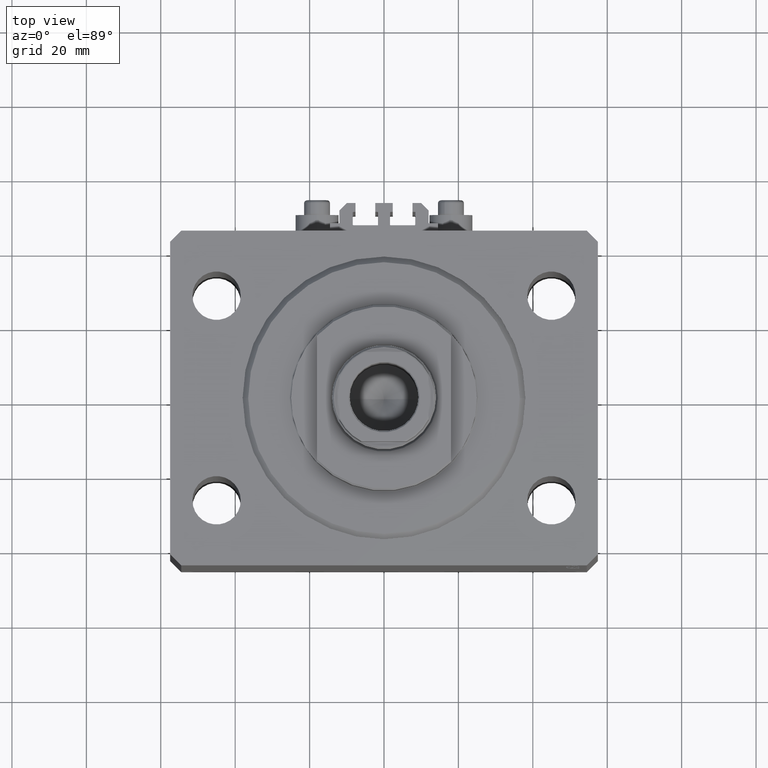
[diagram: clean part render]
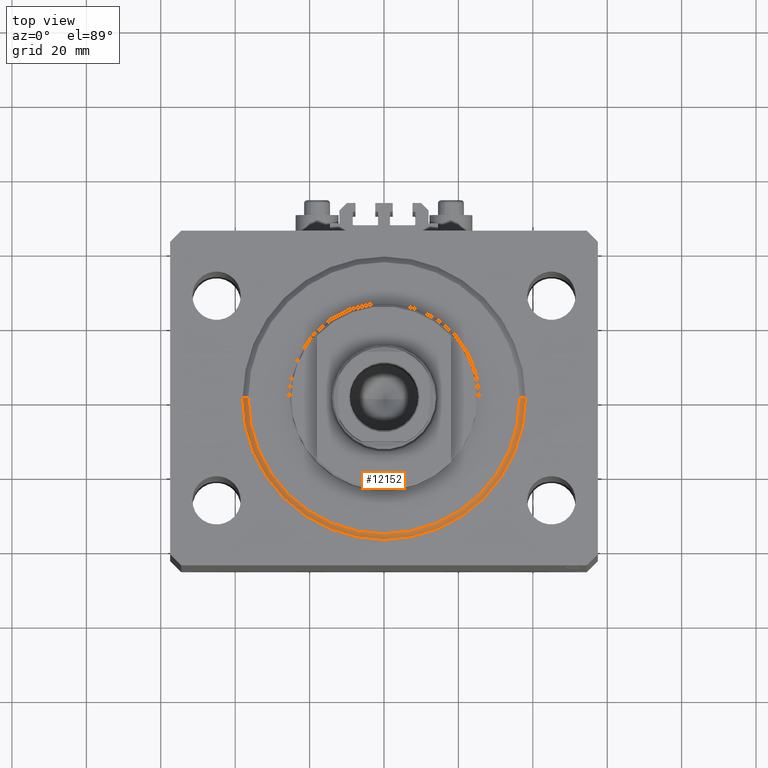
[diagram: same view with one face highlighted and labeled with its STEP entity id]
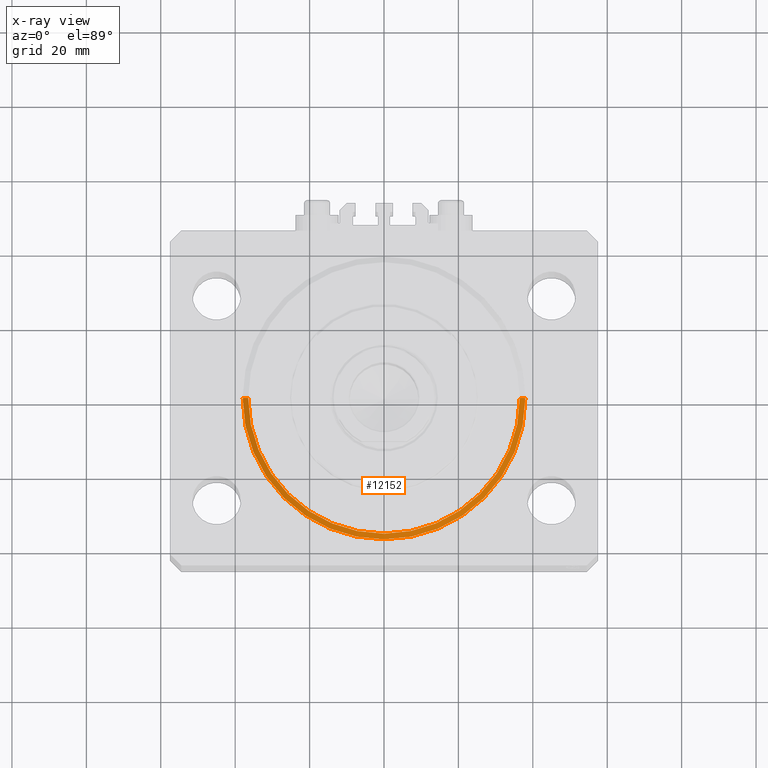
[diagram: x-ray of the same camera — body ghosted, the highlighted face saturated]
A machine part, top view. The second image highlights one B-rep face of the part: STEP entity #12152.
The next image is the same camera in x-ray: the body ghosted, the highlighted face saturated — about 0% of this face is hidden behind the body in this view.
In plain terms, the highlighted conical surface has half-angle 45 deg.
Its self-contained STEP definition (entity closure, byte-faithful):
#1091 = CARTESIAN_POINT ( 'NONE',  ( 0.000000000000000000, 0.000000000000000000, 0.000000000000000000 ) ) ;
#1856 = CARTESIAN_POINT ( 'NONE',  ( -36.50000000000000000, 4.561809326823889791E-15, 0.000000000000000000 ) ) ;
#3120 = VERTEX_POINT ( 'NONE', #44545 ) ;
#3258 = ORIENTED_EDGE ( 'NONE', *, *, #10671, .F. ) ;
#4612 = FACE_OUTER_BOUND ( 'NONE', #21319, .T. ) ;
#4870 = AXIS2_PLACEMENT_3D ( 'NONE', #1091, #30045, #22635 ) ;
#4907 = EDGE_CURVE ( 'NONE', #6651, #3120, #33453, .T. ) ;
#6651 = VERTEX_POINT ( 'NONE', #29297 ) ;
#8449 = DIRECTION ( 'NONE',  ( -0.000000000000000000, -0.000000000000000000, 1.000000000000000000 ) ) ;
#10671 = EDGE_CURVE ( 'NONE', #30992, #14857, #36977, .T. ) ;
#11618 = VECTOR ( 'NONE', #34641, 1000.000000000000114 ) ;
#12152 = ADVANCED_FACE ( 'NONE', ( #4612 ), #13872, .T. ) ;
#13872 = CONICAL_SURFACE ( 'NONE', #32204, 38.00000000000000000, 0.7853981633974506105 ) ;
#14857 = VERTEX_POINT ( 'NONE', #1856 ) ;
#16604 = EDGE_CURVE ( 'NONE', #14857, #6651, #19567, .T. ) ;
#16657 = AXIS2_PLACEMENT_3D ( 'NONE', #41797, #16906, #31968 ) ;
#16906 = DIRECTION ( 'NONE',  ( -0.000000000000000000, -0.000000000000000000, 1.000000000000000000 ) ) ;
#19567 = LINE ( 'NONE', #38227, #11618 ) ;
#21319 = EDGE_LOOP ( 'NONE', ( #43326, #3258, #25824, #31400 ) ) ;
#22635 = DIRECTION ( 'NONE',  ( 1.000000000000000000, 0.000000000000000000, 0.000000000000000000 ) ) ;
#25824 = ORIENTED_EDGE ( 'NONE', *, *, #27468, .T. ) ;
#26252 = DIRECTION ( 'NONE',  ( 0.7071067811865491270, 0.000000000000000000, 0.7071067811865459074 ) ) ;
#27468 = EDGE_CURVE ( 'NONE', #30992, #3120, #41098, .T. ) ;
#29297 = CARTESIAN_POINT ( 'NONE',  ( -38.00000000000000000, 0.000000000000000000, 1.499999999999994449 ) ) ;
#30045 = DIRECTION ( 'NONE',  ( -0.000000000000000000, -0.000000000000000000, -1.000000000000000000 ) ) ;
#30992 = VERTEX_POINT ( 'NONE', #33840 ) ;
#31400 = ORIENTED_EDGE ( 'NONE', *, *, #4907, .F. ) ;
#31968 = DIRECTION ( 'NONE',  ( 1.000000000000000000, 0.000000000000000000, 0.000000000000000000 ) ) ;
#32204 = AXIS2_PLACEMENT_3D ( 'NONE', #45278, #8449, #33328 ) ;
#33328 = DIRECTION ( 'NONE',  ( 1.000000000000000000, 0.000000000000000000, 0.000000000000000000 ) ) ;
#33453 = CIRCLE ( 'NONE', #16657, 38.00000000000000000 ) ;
#33840 = CARTESIAN_POINT ( 'NONE',  ( 36.50000000000000000, 0.000000000000000000, 0.000000000000000000 ) ) ;
#34641 = DIRECTION ( 'NONE',  ( -0.7071067811865491270, 8.659560562354953812E-17, 0.7071067811865459074 ) ) ;
#36977 = CIRCLE ( 'NONE', #4870, 36.50000000000000000 ) ;
#38227 = CARTESIAN_POINT ( 'NONE',  ( -38.00000000000000000, 4.653657836759941941E-15, 1.499999999999994449 ) ) ;
#41098 = LINE ( 'NONE', #44678, #41697 ) ;
#41697 = VECTOR ( 'NONE', #26252, 1000.000000000000114 ) ;
#41797 = CARTESIAN_POINT ( 'NONE',  ( 0.000000000000000000, 0.000000000000000000, 1.499999999999994449 ) ) ;
#43326 = ORIENTED_EDGE ( 'NONE', *, *, #16604, .F. ) ;
#44545 = CARTESIAN_POINT ( 'NONE',  ( 38.00000000000000000, 4.653657836759941941E-15, 1.499999999999994449 ) ) ;
#44678 = CARTESIAN_POINT ( 'NONE',  ( 38.00000000000000000, 0.000000000000000000, 1.499999999999994449 ) ) ;
#45278 = CARTESIAN_POINT ( 'NONE',  ( 0.000000000000000000, 0.000000000000000000, 1.499999999999994449 ) ) ;